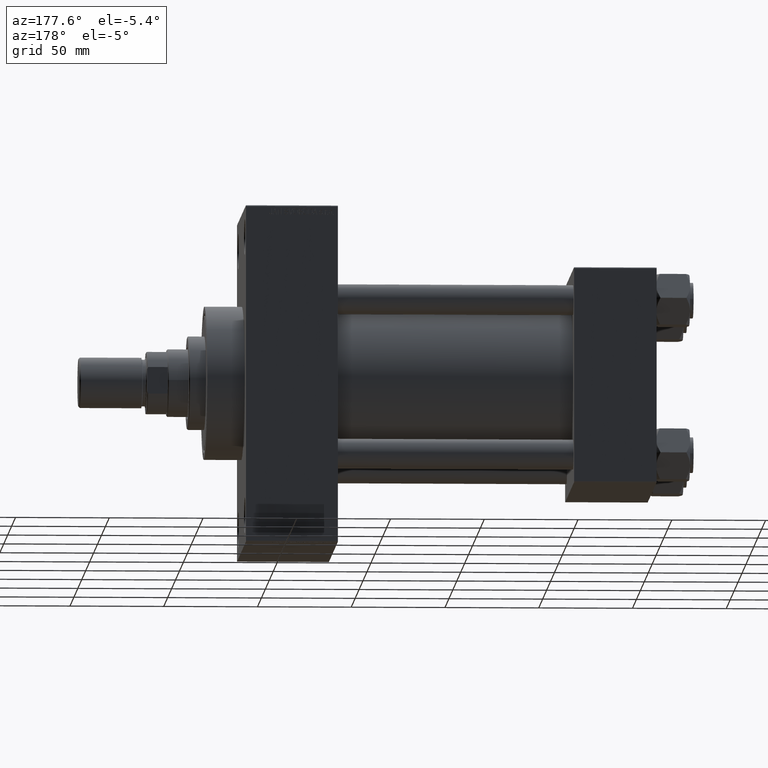
[diagram: clean part render]
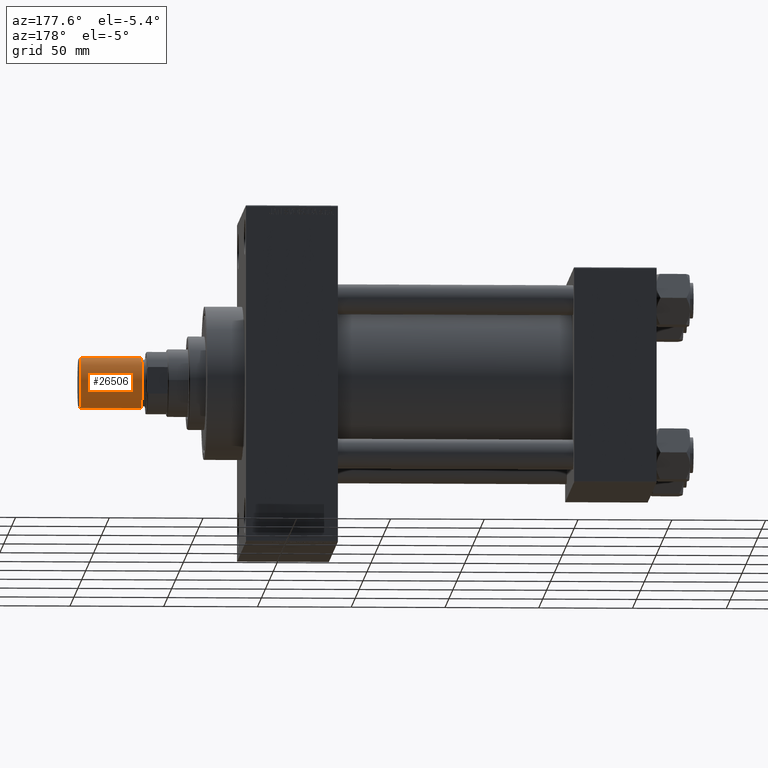
[diagram: same view with one face highlighted and labeled with its STEP entity id]
A machine part, auxiliary view. The second image highlights one B-rep face of the part: STEP entity #26506.
In plain terms, the highlighted cylindrical surface (edge-blend (fillet) strip) has radius 13.5 mm, axis along (1, -0, -0).
Its self-contained STEP definition (entity closure, byte-faithful):
#1381 = CYLINDRICAL_SURFACE ( 'NONE', #45894, 13.50000000000000000 ) ;
#2100 = CARTESIAN_POINT ( 'NONE',  ( 0.000000000000000000, 0.000000000000000000, 33.50000000000000000 ) ) ;
#3296 = VERTEX_POINT ( 'NONE', #6662 ) ;
#3379 = DIRECTION ( 'NONE',  ( -0.000000000000000000, -0.000000000000000000, 1.000000000000000000 ) ) ;
#4422 = EDGE_CURVE ( 'NONE', #37149, #7777, #7012, .T. ) ;
#5953 = DIRECTION ( 'NONE',  ( 1.000000000000000000, 0.000000000000000000, 0.000000000000000000 ) ) ;
#6662 = CARTESIAN_POINT ( 'NONE',  ( -13.50000000000000000, 0.000000000000000000, 33.50000000000000000 ) ) ;
#7012 = CIRCLE ( 'NONE', #23392, 13.50000000000000000 ) ;
#7777 = VERTEX_POINT ( 'NONE', #22002 ) ;
#9441 = FACE_OUTER_BOUND ( 'NONE', #23966, .T. ) ;
#9531 = ORIENTED_EDGE ( 'NONE', *, *, #27182, .T. ) ;
#11783 = EDGE_CURVE ( 'NONE', #3296, #7777, #15674, .T. ) ;
#15674 = LINE ( 'NONE', #20275, #15723 ) ;
#15723 = VECTOR ( 'NONE', #45734, 1000.000000000000000 ) ;
#17290 = VERTEX_POINT ( 'NONE', #37410 ) ;
#19377 = VECTOR ( 'NONE', #40778, 1000.000000000000000 ) ;
#20275 = CARTESIAN_POINT ( 'NONE',  ( -13.50000000000000000, 0.000000000000000000, 33.50000000000000000 ) ) ;
#21336 = CARTESIAN_POINT ( 'NONE',  ( 0.000000000000000000, 0.000000000000000000, 33.50000000000000000 ) ) ;
#21945 = CARTESIAN_POINT ( 'NONE',  ( 0.000000000000000000, 0.000000000000000000, 0.7999999999999951594 ) ) ;
#22002 = CARTESIAN_POINT ( 'NONE',  ( -13.50000000000000000, 0.000000000000000000, 0.7999999999999951594 ) ) ;
#22900 = LINE ( 'NONE', #41735, #19377 ) ;
#23392 = AXIS2_PLACEMENT_3D ( 'NONE', #21945, #3379, #26104 ) ;
#23966 = EDGE_LOOP ( 'NONE', ( #47242, #9531, #42134, #42370 ) ) ;
#26104 = DIRECTION ( 'NONE',  ( 1.000000000000000000, 0.000000000000000000, 0.000000000000000000 ) ) ;
#26506 = ADVANCED_FACE ( 'NONE', ( #9441 ), #1381, .T. ) ;
#27182 = EDGE_CURVE ( 'NONE', #17290, #37149, #22900, .T. ) ;
#30749 = CIRCLE ( 'NONE', #42476, 13.50000000000000000 ) ;
#34864 = DIRECTION ( 'NONE',  ( -0.000000000000000000, -0.000000000000000000, -1.000000000000000000 ) ) ;
#37149 = VERTEX_POINT ( 'NONE', #37806 ) ;
#37410 = CARTESIAN_POINT ( 'NONE',  ( 13.50000000000000000, 1.653273178848926867E-15, 33.50000000000000000 ) ) ;
#37806 = CARTESIAN_POINT ( 'NONE',  ( 13.50000000000000000, 1.653273178848926867E-15, 0.7999999999999951594 ) ) ;
#40778 = DIRECTION ( 'NONE',  ( -0.000000000000000000, -0.000000000000000000, -1.000000000000000000 ) ) ;
#41735 = CARTESIAN_POINT ( 'NONE',  ( 13.50000000000000000, 1.653273178848926867E-15, 33.50000000000000000 ) ) ;
#42134 = ORIENTED_EDGE ( 'NONE', *, *, #4422, .T. ) ;
#42370 = ORIENTED_EDGE ( 'NONE', *, *, #11783, .F. ) ;
#42457 = DIRECTION ( 'NONE',  ( -1.000000000000000000, 0.000000000000000000, 0.000000000000000000 ) ) ;
#42476 = AXIS2_PLACEMENT_3D ( 'NONE', #21336, #47497, #5953 ) ;
#45734 = DIRECTION ( 'NONE',  ( -0.000000000000000000, -0.000000000000000000, -1.000000000000000000 ) ) ;
#45894 = AXIS2_PLACEMENT_3D ( 'NONE', #2100, #34864, #42457 ) ;
#47242 = ORIENTED_EDGE ( 'NONE', *, *, #47249, .F. ) ;
#47249 = EDGE_CURVE ( 'NONE', #17290, #3296, #30749, .T. ) ;
#47497 = DIRECTION ( 'NONE',  ( 0.000000000000000000, 0.000000000000000000, 1.000000000000000000 ) ) ;